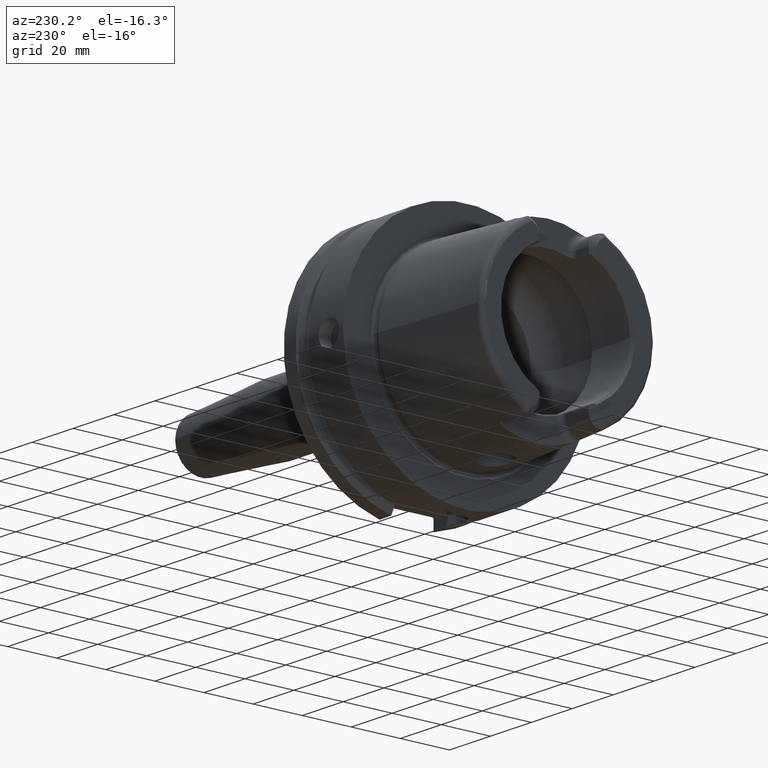
[diagram: clean part render]
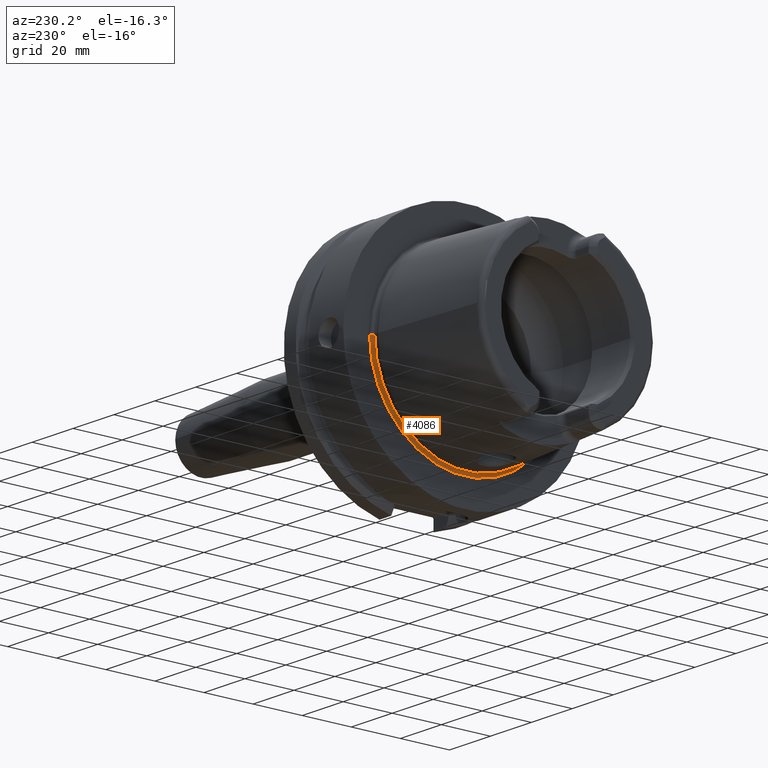
[diagram: same view with one face highlighted and labeled with its STEP entity id]
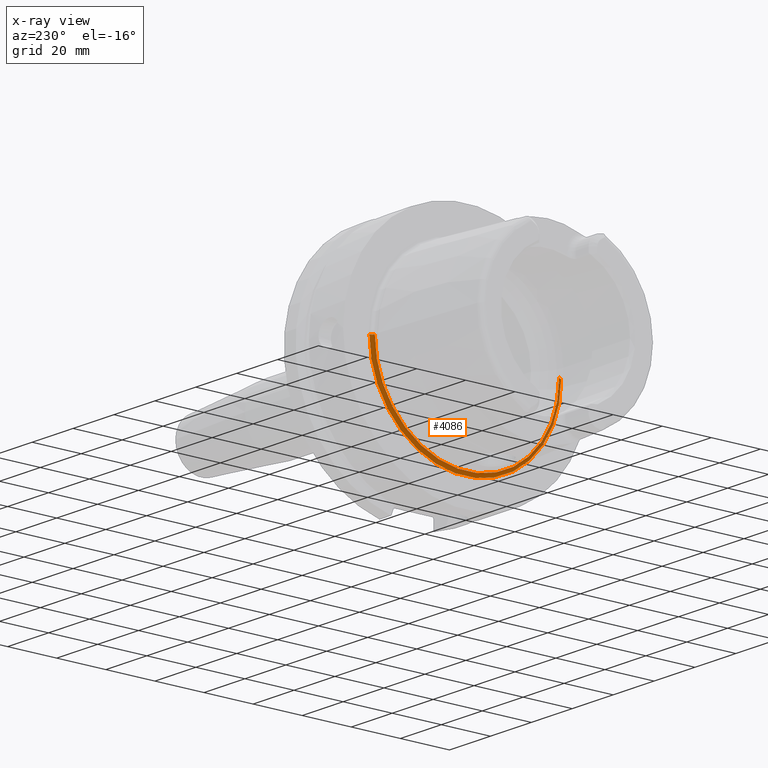
[diagram: x-ray of the same camera — body ghosted, the highlighted face saturated]
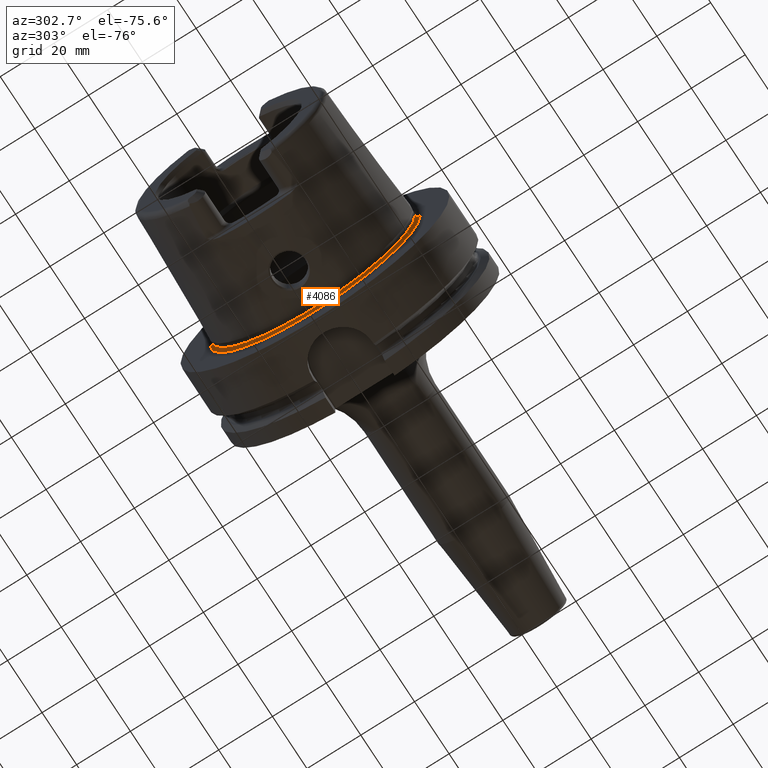
[diagram: same view with one face highlighted and labeled with its STEP entity id]
A machine part, auxiliary view. The second image highlights one B-rep face of the part: STEP entity #4086.
The next image is the same camera in x-ray: the body ghosted, the highlighted face saturated — about 10% of this face is hidden behind the body in this view.
A second angle (auxiliary view) of the same face is appended — the face is thin or edge-on in the first view.
In plain terms, the highlighted toroidal blend (fillet) surface has major radius 38.6823 mm and minor (blend) radius 1 mm.
Its self-contained STEP definition (entity closure, byte-faithful):
#867=CARTESIAN_POINT('',(-7.005712886803E-1,0.E0,0.E0));
#868=DIRECTION('',(-1.E0,0.E0,0.E0));
#869=DIRECTION('',(0.E0,1.E0,0.E0));
#870=AXIS2_PLACEMENT_3D('',#867,#868,#869);
#882=CARTESIAN_POINT('',(-7.005712886803E-1,3.868225E1,0.E0));
#883=DIRECTION('',(0.E0,0.E0,-1.E0));
#884=DIRECTION('',(9.304175679820E-1,3.665012267243E-1,0.E0));
#885=AXIS2_PLACEMENT_3D('',#882,#883,#884);
#887=CARTESIAN_POINT('',(-7.005712886803E-1,-3.868225E1,0.E0));
#888=DIRECTION('',(0.E0,0.E0,1.E0));
#889=DIRECTION('',(9.304175679820E-1,-3.665012267243E-1,0.E0));
#890=AXIS2_PLACEMENT_3D('',#887,#888,#889);
#892=CARTESIAN_POINT('',(2.298462793018E-1,0.E0,0.E0));
#893=DIRECTION('',(-1.E0,0.E0,0.E0));
#894=DIRECTION('',(0.E0,1.E0,0.E0));
#895=AXIS2_PLACEMENT_3D('',#892,#893,#894);
#2697=CARTESIAN_POINT('',(2.298462793018E-1,-3.904875122672E1,0.E0));
#2698=CARTESIAN_POINT('',(-7.005712886803E-1,-3.768225E1,0.E0));
#2699=VERTEX_POINT('',#2697);
#2700=VERTEX_POINT('',#2698);
#2705=CARTESIAN_POINT('',(2.298462793018E-1,3.904875122672E1,0.E0));
#2706=CARTESIAN_POINT('',(-7.005712886803E-1,3.768225E1,0.E0));
#2707=VERTEX_POINT('',#2705);
#2708=VERTEX_POINT('',#2706);
#4074=CARTESIAN_POINT('',(-7.005712886803E-1,0.E0,0.E0));
#4075=DIRECTION('',(-1.E0,0.E0,0.E0));
#4076=DIRECTION('',(0.E0,-1.E0,0.E0));
#4077=AXIS2_PLACEMENT_3D('',#4074,#4075,#4076);
#4078=TOROIDAL_SURFACE('',#4077,3.868225E1,1.E0);
#4079=ORIENTED_EDGE('',*,*,#4067,.T.);
#4080=ORIENTED_EDGE('',*,*,#4041,.T.);
#4081=ORIENTED_EDGE('',*,*,#4064,.F.);
#4083=ORIENTED_EDGE('',*,*,#4082,.F.);
#4084=EDGE_LOOP('',(#4079,#4080,#4081,#4083));
#4085=FACE_OUTER_BOUND('',#4084,.F.);
#4086=ADVANCED_FACE('',(#4085),#4078,.F.);
#871=CIRCLE('',#870,3.768225E1);
#886=CIRCLE('',#885,1.E0);
#891=CIRCLE('',#890,1.E0);
#896=CIRCLE('',#895,3.904875122672E1);
#4041=EDGE_CURVE('',#2708,#2700,#871,.T.);
#4064=EDGE_CURVE('',#2699,#2700,#891,.T.);
#4067=EDGE_CURVE('',#2707,#2708,#886,.T.);
#4082=EDGE_CURVE('',#2707,#2699,#896,.T.);